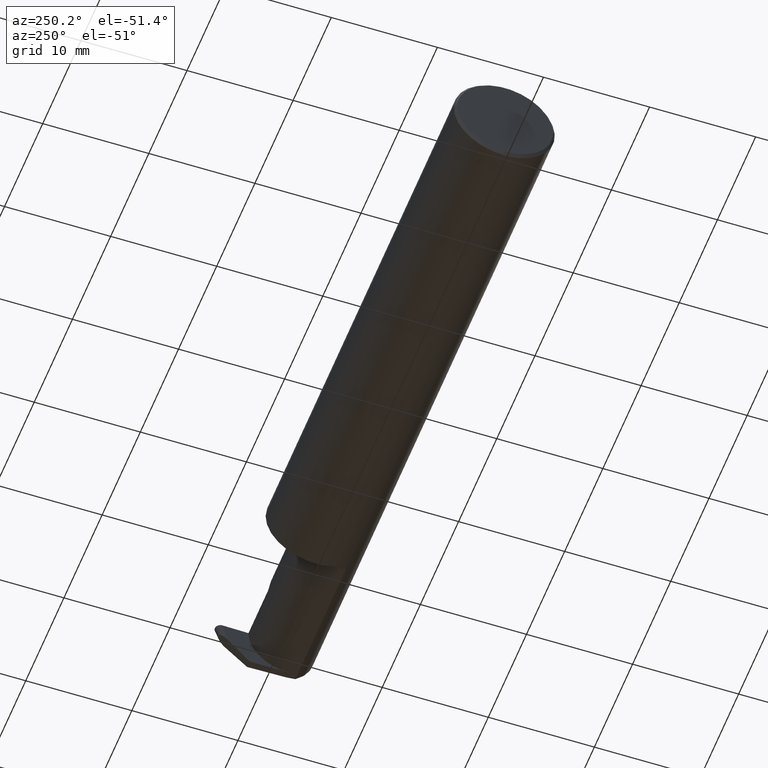
[diagram: clean part render]
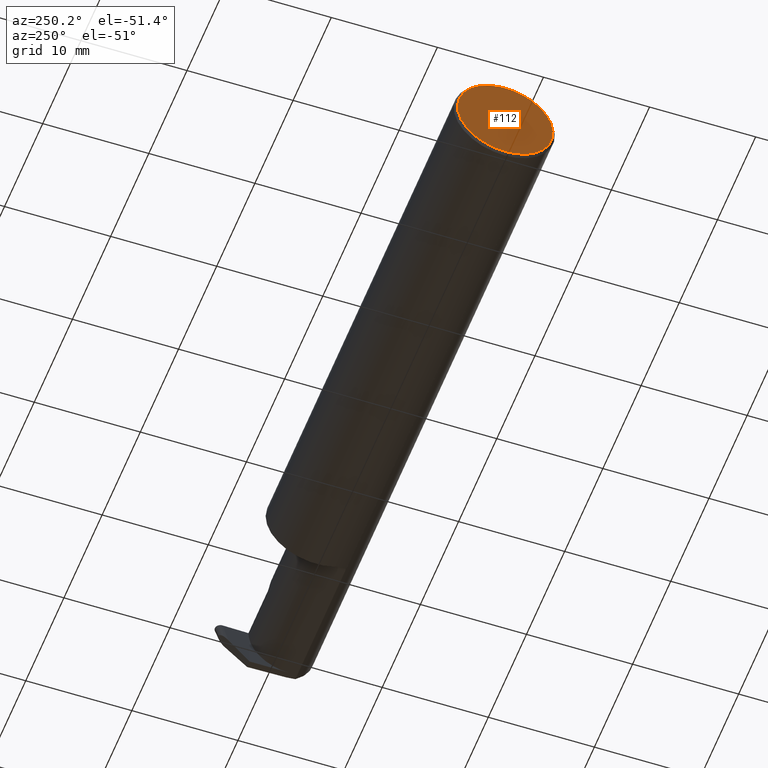
[diagram: same view with one face highlighted and labeled with its STEP entity id]
A machine part, auxiliary view. The second image highlights one B-rep face of the part: STEP entity #112.
In plain terms, the highlighted planar face has unit normal (1, 0, 0).
Its self-contained STEP definition (entity closure, byte-faithful):
#2 = ORIENTED_EDGE ( 'NONE', *, *, #375, .T. ) ;
#13 = VERTEX_POINT ( 'NONE', #263 ) ;
#37 = AXIS2_PLACEMENT_3D ( 'NONE', #459, #129, #115 ) ;
#54 = CARTESIAN_POINT ( 'NONE',  ( 0.000000000000000000, 0.000000000000000000, 0.000000000000000000 ) ) ;
#76 = AXIS2_PLACEMENT_3D ( 'NONE', #54, #314, #265 ) ;
#112 = ADVANCED_FACE ( 'NONE', ( #450 ), #508, .F. ) ;
#115 = DIRECTION ( 'NONE',  ( 0.000000000000000000, 0.000000000000000000, -1.000000000000000000 ) ) ;
#129 = DIRECTION ( 'NONE',  ( 1.000000000000000000, 0.000000000000000000, 0.000000000000000000 ) ) ;
#149 = DIRECTION ( 'NONE',  ( -1.000000000000000000, -0.000000000000000000, -0.000000000000000000 ) ) ;
#158 = CARTESIAN_POINT ( 'NONE',  ( 0.000000000000000000, 0.000000000000000000, 0.000000000000000000 ) ) ;
#170 = ORIENTED_EDGE ( 'NONE', *, *, #579, .T. ) ;
#228 = EDGE_LOOP ( 'NONE', ( #170, #492, #2 ) ) ;
#230 = DIRECTION ( 'NONE',  ( -0.000000000000000000, 1.000000000000000000, -0.000000000000000000 ) ) ;
#252 = CARTESIAN_POINT ( 'NONE',  ( 0.000000000000000000, 0.01880691362239451242, 0.1763499999999999235 ) ) ;
#263 = CARTESIAN_POINT ( 'NONE',  ( 0.000000000000000000, 0.000000000000000000, -0.1773500000000005072 ) ) ;
#265 = DIRECTION ( 'NONE',  ( 0.000000000000000000, 0.000000000000000000, -1.000000000000000000 ) ) ;
#283 = LINE ( 'NONE', #498, #285 ) ;
#285 = VECTOR ( 'NONE', #230, 39.37007874015748143 ) ;
#314 = DIRECTION ( 'NONE',  ( -1.000000000000000000, -0.000000000000000000, -0.000000000000000000 ) ) ;
#373 = CARTESIAN_POINT ( 'NONE',  ( 0.000000000000000000, -0.01880691362239451242, 0.1763499999999999235 ) ) ;
#375 = EDGE_CURVE ( 'NONE', #13, #385, #488, .T. ) ;
#385 = VERTEX_POINT ( 'NONE', #373 ) ;
#399 = VERTEX_POINT ( 'NONE', #252 ) ;
#429 = EDGE_CURVE ( 'NONE', #399, #13, #468, .T. ) ;
#450 = FACE_OUTER_BOUND ( 'NONE', #228, .T. ) ;
#459 = CARTESIAN_POINT ( 'NONE',  ( 0.000000000000000000, 0.000000000000000000, 0.000000000000000000 ) ) ;
#468 = CIRCLE ( 'NONE', #76, 0.1773500000000005072 ) ;
#488 = CIRCLE ( 'NONE', #526, 0.1773500000000005072 ) ;
#492 = ORIENTED_EDGE ( 'NONE', *, *, #429, .T. ) ;
#498 = CARTESIAN_POINT ( 'NONE',  ( 0.000000000000000000, 0.1873499999999998500, 0.1763499999999999235 ) ) ;
#508 = PLANE ( 'NONE',  #37 ) ;
#526 = AXIS2_PLACEMENT_3D ( 'NONE', #158, #149, #543 ) ;
#543 = DIRECTION ( 'NONE',  ( 0.000000000000000000, 0.000000000000000000, -1.000000000000000000 ) ) ;
#579 = EDGE_CURVE ( 'NONE', #385, #399, #283, .T. ) ;